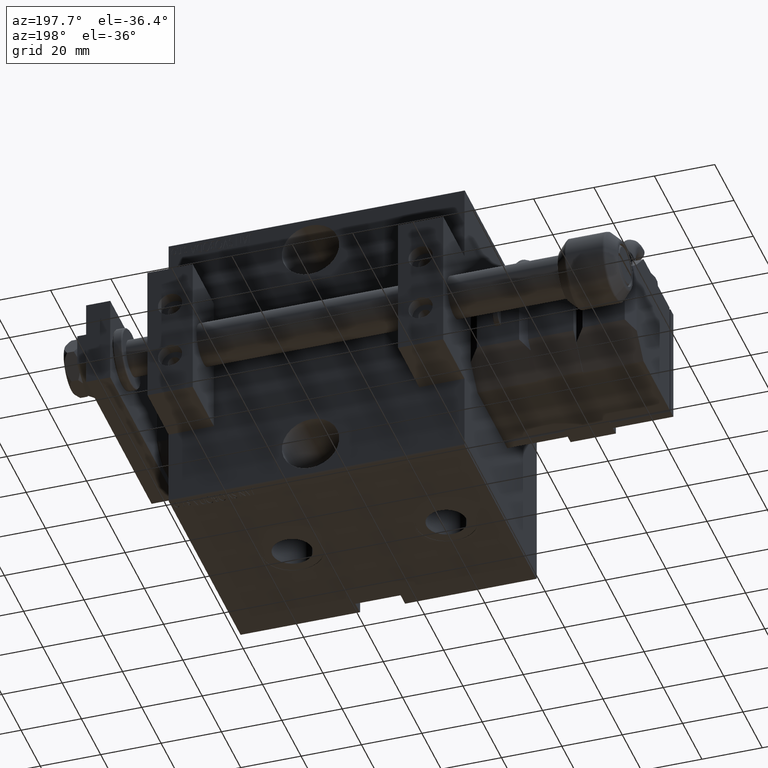
[diagram: clean part render]
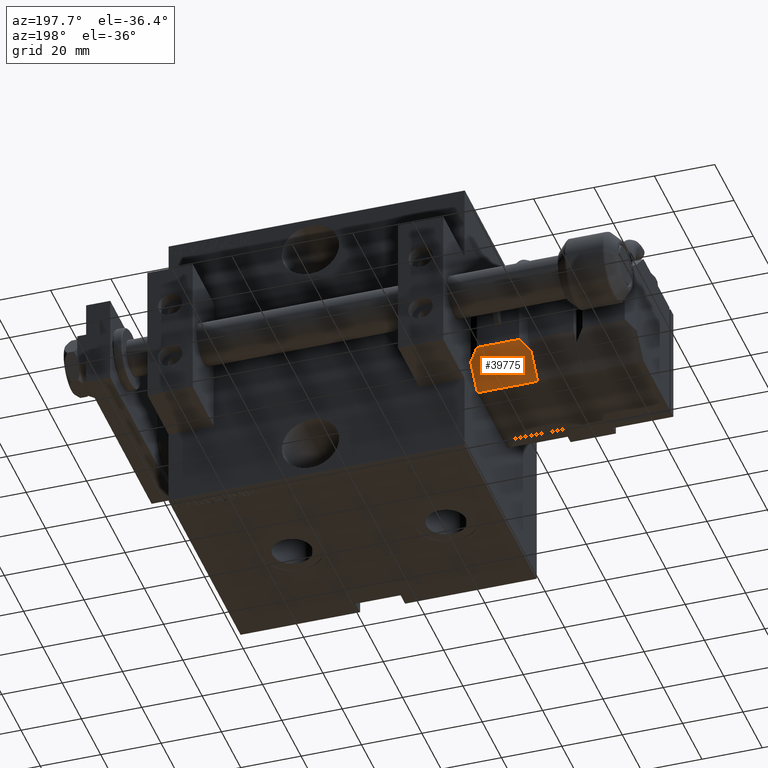
[diagram: same view with one face highlighted and labeled with its STEP entity id]
A machine part, auxiliary view. The second image highlights one B-rep face of the part: STEP entity #39775.
In plain terms, the highlighted planar face has unit normal (0, -0.7071, 0.7071).
Its self-contained STEP definition (entity closure, byte-faithful):
#400 = LINE ( 'NONE', #29641, #28952 ) ;
#501 = CARTESIAN_POINT ( 'NONE',  ( 3.333333333333287296, 30.16666666666678154, -0.3333333333333339255 ) ) ;
#1202 = CARTESIAN_POINT ( 'NONE',  ( 9.999999999999984013, 23.50000000000009592, 10.00000000000000000 ) ) ;
#1359 = CARTESIAN_POINT ( 'NONE',  ( 8.666666666666658969, 24.83333333333341741, 5.666666666666664298 ) ) ;
#1573 = DIRECTION ( 'NONE',  ( -0.7071067811865479058, 0.7071067811865470176, -0.000000000000000000 ) ) ;
#2261 = VECTOR ( 'NONE', #26055, 1000.000000000000227 ) ;
#2872 = LINE ( 'NONE', #32802, #27992 ) ;
#4213 = PLANE ( 'NONE',  #7304 ) ;
#5722 = LINE ( 'NONE', #17021, #38220 ) ;
#7304 = AXIS2_PLACEMENT_3D ( 'NONE', #1202, #11342, #22164 ) ;
#9788 = CARTESIAN_POINT ( 'NONE',  ( 12.99999999999999112, 20.50000000000009592, -10.00000000000000000 ) ) ;
#9973 = VERTEX_POINT ( 'NONE', #29538 ) ;
#10419 = EDGE_CURVE ( 'NONE', #44033, #9973, #2872, .T. ) ;
#10558 = CARTESIAN_POINT ( 'NONE',  ( 9.999999999999984013, 23.50000000000009592, 6.999999999999990230 ) ) ;
#10602 = ORIENTED_EDGE ( 'NONE', *, *, #38347, .T. ) ;
#11342 = DIRECTION ( 'NONE',  ( -0.7071067811865471286, -0.7071067811865480168, 0.000000000000000000 ) ) ;
#12044 = CARTESIAN_POINT ( 'NONE',  ( 20.00000000000005684, 13.50000000000003730, 10.00000000000000000 ) ) ;
#12273 = EDGE_CURVE ( 'NONE', #19631, #21946, #5722, .T. ) ;
#13918 = DIRECTION ( 'NONE',  ( -0.7071067811865479058, 0.7071067811865470176, -0.000000000000000000 ) ) ;
#15378 = DIRECTION ( 'NONE',  ( -0.000000000000000000, -0.000000000000000000, -1.000000000000000000 ) ) ;
#15956 = EDGE_CURVE ( 'NONE', #44033, #26770, #400, .T. ) ;
#16169 = ORIENTED_EDGE ( 'NONE', *, *, #27312, .T. ) ;
#16507 = EDGE_LOOP ( 'NONE', ( #16169, #22981, #42506, #10602, #47243, #37906 ) ) ;
#17021 = CARTESIAN_POINT ( 'NONE',  ( 9.999999999999984013, 23.50000000000009592, 10.00000000000000000 ) ) ;
#18383 = EDGE_CURVE ( 'NONE', #35161, #21946, #37804, .T. ) ;
#19631 = VERTEX_POINT ( 'NONE', #10558 ) ;
#19893 = VECTOR ( 'NONE', #1573, 1000.000000000000114 ) ;
#20009 = LINE ( 'NONE', #1359, #42522 ) ;
#21946 = VERTEX_POINT ( 'NONE', #47568 ) ;
#22164 = DIRECTION ( 'NONE',  ( 0.7071067811865479058, -0.7071067811865470176, 0.000000000000000000 ) ) ;
#22240 = CARTESIAN_POINT ( 'NONE',  ( 20.00000000000005684, 13.50000000000003730, -10.00000000000000000 ) ) ;
#22981 = ORIENTED_EDGE ( 'NONE', *, *, #18383, .T. ) ;
#24143 = DIRECTION ( 'NONE',  ( -0.000000000000000000, -0.000000000000000000, -1.000000000000000000 ) ) ;
#26055 = DIRECTION ( 'NONE',  ( -0.5773502691896266192, 0.5773502691896259531, 0.5773502691896246208 ) ) ;
#26770 = VERTEX_POINT ( 'NONE', #22240 ) ;
#27312 = EDGE_CURVE ( 'NONE', #26770, #35161, #35430, .T. ) ;
#27992 = VECTOR ( 'NONE', #13918, 1000.000000000000114 ) ;
#28952 = VECTOR ( 'NONE', #15378, 1000.000000000000000 ) ;
#29538 = CARTESIAN_POINT ( 'NONE',  ( 12.99999999999999112, 20.50000000000009592, 10.00000000000000000 ) ) ;
#29641 = CARTESIAN_POINT ( 'NONE',  ( 20.00000000000005684, 13.50000000000003730, 10.00000000000000000 ) ) ;
#31543 = DIRECTION ( 'NONE',  ( 0.5773502691896258421, -0.5773502691896250649, 0.5773502691896263972 ) ) ;
#32802 = CARTESIAN_POINT ( 'NONE',  ( 9.999999999999984013, 23.50000000000009592, 10.00000000000000000 ) ) ;
#35161 = VERTEX_POINT ( 'NONE', #9788 ) ;
#35430 = LINE ( 'NONE', #42290, #19893 ) ;
#37804 = LINE ( 'NONE', #501, #2261 ) ;
#37906 = ORIENTED_EDGE ( 'NONE', *, *, #15956, .T. ) ;
#38220 = VECTOR ( 'NONE', #24143, 1000.000000000000000 ) ;
#38347 = EDGE_CURVE ( 'NONE', #19631, #9973, #20009, .T. ) ;
#39775 = ADVANCED_FACE ( 'NONE', ( #42416 ), #4213, .F. ) ;
#42290 = CARTESIAN_POINT ( 'NONE',  ( 9.999999999999984013, 23.50000000000009592, -10.00000000000000000 ) ) ;
#42416 = FACE_OUTER_BOUND ( 'NONE', #16507, .T. ) ;
#42506 = ORIENTED_EDGE ( 'NONE', *, *, #12273, .F. ) ;
#42522 = VECTOR ( 'NONE', #31543, 999.9999999999998863 ) ;
#44033 = VERTEX_POINT ( 'NONE', #12044 ) ;
#47243 = ORIENTED_EDGE ( 'NONE', *, *, #10419, .F. ) ;
#47568 = CARTESIAN_POINT ( 'NONE',  ( 9.999999999999984013, 23.50000000000009592, -7.000000000000004441 ) ) ;